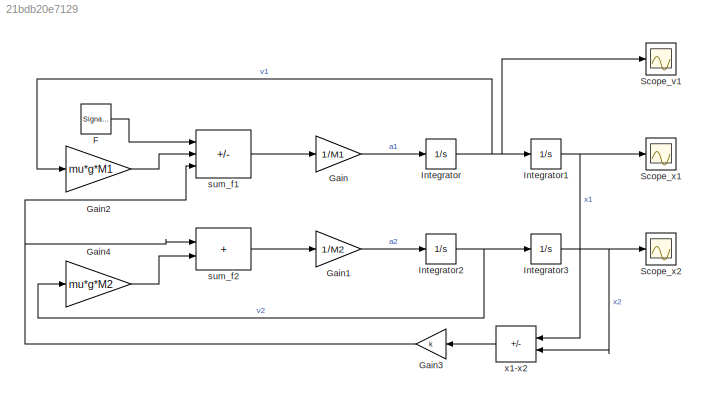
MODEL slx_21bdb20e7129
KIND model
CONFIG AbsTol = auto
CONFIG EnableMultiTasking = off
CONFIG FixedStep = auto
CONFIG MaxStep = 0.01
CONFIG MinStep = auto
CONFIG RelTol = 1e-3
CONFIG SampleTimeConstraint = Unconstrained
CONFIG SolverName = VariableStepAuto
CONFIG StartTime = 0.0
CONFIG StopTime = 1000
BLOCK [SignalGenerator] F
  Amplitude = -1
  Frequency = 0.001
  WaveForm = square
BLOCK [Gain] Gain
  Gain = 1/M1
BLOCK [Gain] Gain1
  Gain = 1/M2
BLOCK [Gain] Gain2
  Gain = mu*g*M1
BLOCK [Gain] Gain3
  Gain = k
  NameLocation = top
BLOCK [Gain] Gain4
  Gain = mu*g*M2
BLOCK [Integrator] Integrator
BLOCK [Integrator] Integrator1
BLOCK [Integrator] Integrator2
BLOCK [Integrator] Integrator3
BLOCK [Scope] Scope_v1
  Floating = off
  NumInputPorts = 1
  ScopeSpecificationString = Simulink.scopes.TimeScopeBlockCfg('CurrentConfiguration', extmgr.ConfigurationSet(extmgr.Configuration('Core','General UI',true),extmgr.Configuration('Core','Source UI',true),extmgr.Configuration('Sources','WiredSimulink',true,'DataLoggingVariableName','ScopeData2'),extmgr.Configuration('Visuals','Time Domain',true,'SerializedDisplays',{struct('MinYLimReal','-192.48882','MaxYLimReal','142.53184','...<+1420ch>
BLOCK [Scope] Scope_x1
  Floating = off
  NumInputPorts = 1
  ScopeSpecificationString = Simulink.scopes.TimeScopeBlockCfg('CurrentConfiguration', extmgr.ConfigurationSet(extmgr.Configuration('Core','General UI',true),extmgr.Configuration('Core','Source UI',true),extmgr.Configuration('Sources','WiredSimulink',true,'DataLoggingVariableName','ScopeData1'),extmgr.Configuration('Visuals','Time Domain',true,'SerializedDisplays',{struct('MinYLimReal','-5062.08888','MaxYLimReal','45558.7999'...<+1383ch>
BLOCK [Scope] Scope_x2
  Floating = off
  NumInputPorts = 1
  ScopeSpecificationString = Simulink.scopes.TimeScopeBlockCfg('CurrentConfiguration', extmgr.ConfigurationSet(extmgr.Configuration('Core','General UI',true),extmgr.Configuration('Core','Source UI',true),extmgr.Configuration('Sources','WiredSimulink',true),extmgr.Configuration('Visuals','Time Domain',true,'SerializedDisplays',{struct('MinYLimReal','-5062.23979','MaxYLimReal','45560.15812','YLabelReal','','MinYLimMag','  0.000...<+1348ch>
BLOCK [Sum] sum_f1
  IconShape = rectangular
  Inputs = +--
BLOCK [Sum] sum_f2
  IconShape = rectangular
BLOCK [Sum] x1-x2
  IconShape = rectangular
  Inputs = +-
  NameLocation = top
LINE F:1 -> sum_f1:1
LINE Gain1:1 -> Integrator2:1
LINE Gain2:1 -> sum_f1:2
NET Gain3:1 -> sum_f1:3, sum_f2:1
LINE Gain4:1 -> sum_f2:2
LINE Gain:1 -> Integrator:1
NET Integrator1:1 -> Scope_x1:1, x1-x2:1
NET Integrator2:1 -> Gain4:1, Integrator3:1
NET Integrator3:1 -> Scope_x2:1, x1-x2:2
NET Integrator:1 -> Gain2:1, Integrator1:1, Scope_v1:1
LINE sum_f1:1 -> Gain:1
LINE sum_f2:1 -> Gain1:1
LINE x1-x2:1 -> Gain3:1
note: NET lines group one-source signal fan-out (src -> all destinations, sorted); 1:1 wires keep LINE
